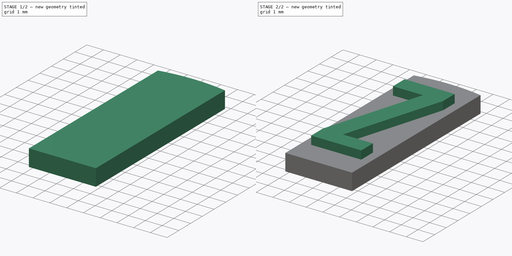
[diagram: build sequence overview — one tinted view per stage of 2, left to right]
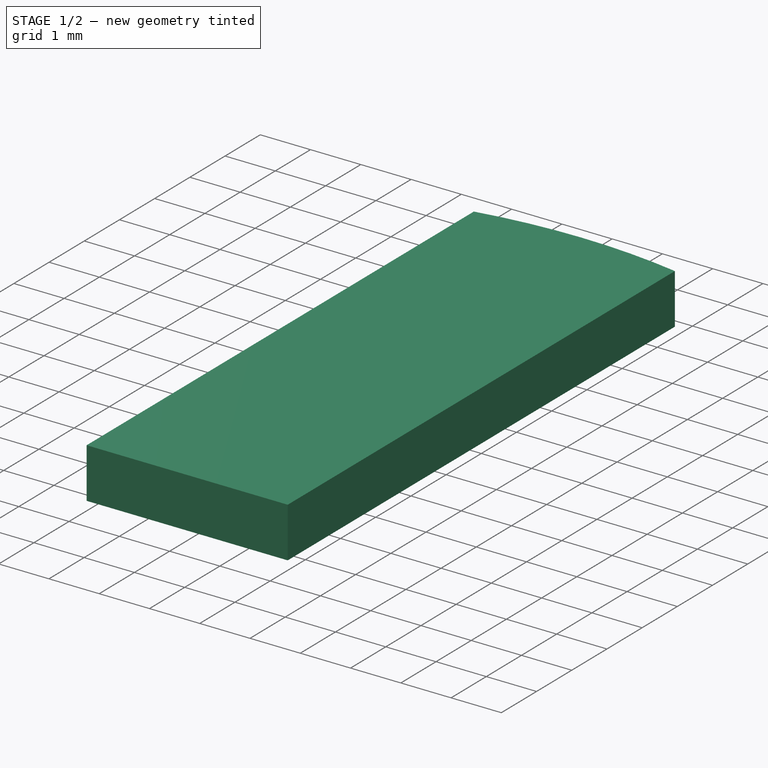
[diagram: stage 1 of 2 — iso view after this stage's code; geometry added in this stage tinted green]
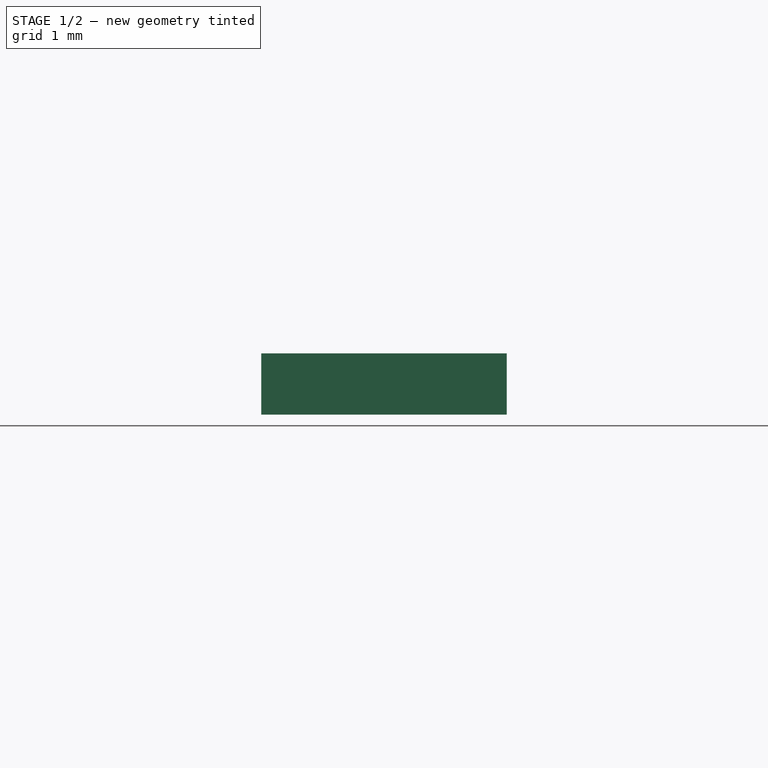
[diagram: stage 1 of 2 — front view after this stage's code; geometry added in this stage tinted green]
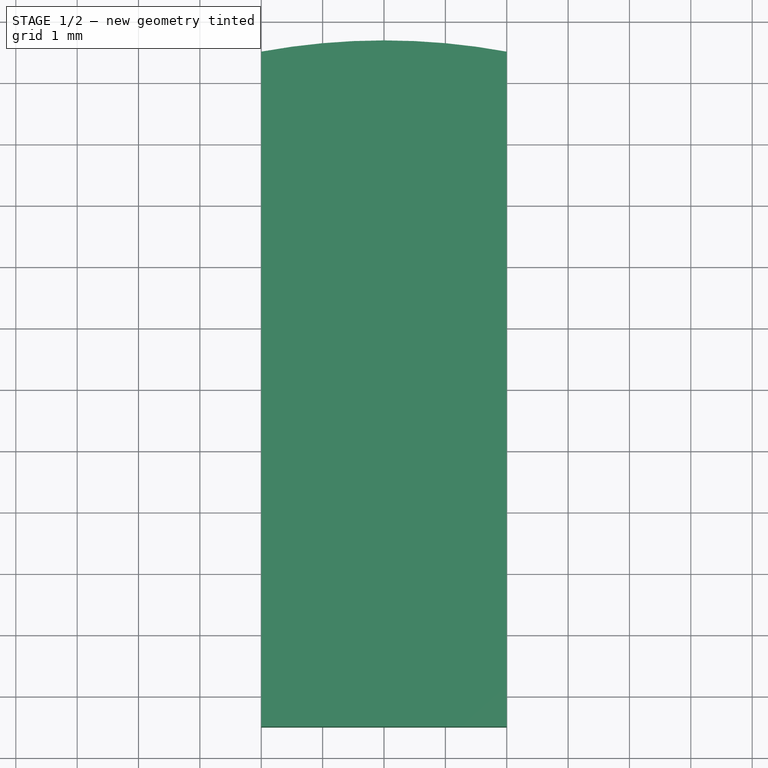
[diagram: stage 1 of 2 — top view after this stage's code; geometry added in this stage tinted green]
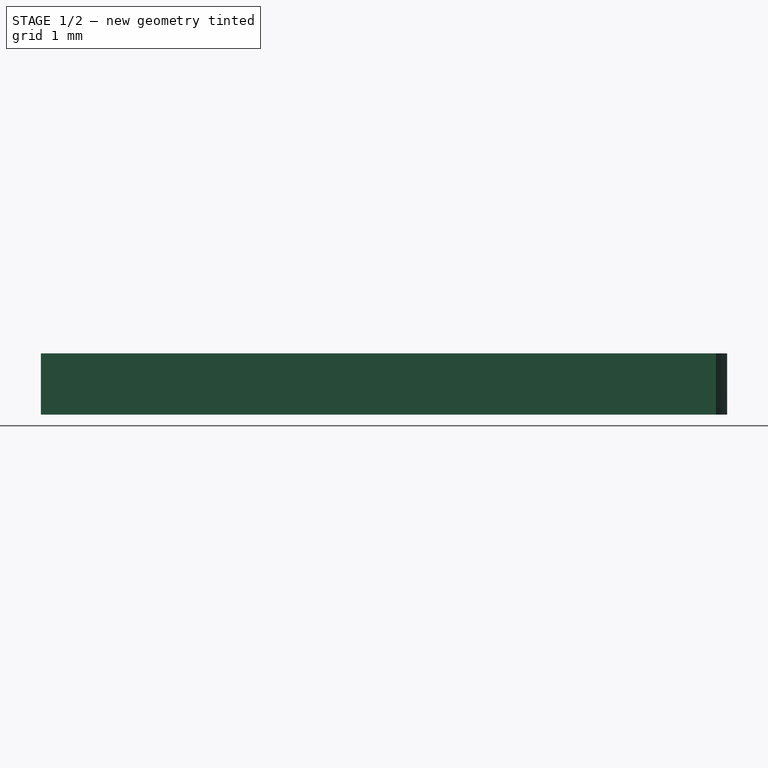
[diagram: stage 1 of 2 — right view after this stage's code; geometry added in this stage tinted green]
FCSTD DOCUMENT  (FreeCAD 0.16R6698 (Git))
Label: 3_2_Face_Cote_Volet
License: All rights reserved
LicenseURL: http://fr.wikipedia.org/wiki/<copyright redacted>
objects: Sketcher::SketchObject×2, PartDesign::Pad×2
note: 6 computed .brp shape members not serialized (recipe doc carries the construction recipe); baked Part::Feature solids carry a one-line shape summary decoded from their .brp

FEATURE [Sketcher::SketchObject] Sketch
  sketch-geometry (4):
    g0: LineSegment StartX=2 StartY=5.5 StartZ=0 EndX=2 EndY=-5.5 EndZ=0
    g1: LineSegment StartX=2 StartY=-5.5 StartZ=0 EndX=-2 EndY=-5.5 EndZ=0
    g2: LineSegment StartX=-2 StartY=-5.5 StartZ=0 EndX=-2 EndY=5.5 EndZ=0
    g3: ArcOfCircle CenterX=0 CenterY=-5.31665 CenterZ=0 NormalX=0 NormalY=0 NormalZ=1 Radius=11 StartAngle=1.38796 EndAngle=1.75363
  constraints (13):
    c: Coincident(g0,g1)
    c: Coincident(g1,g2)
    c: Horizontal(g1)
    c: Vertical(g0)
    c: Vertical(g2)
    c: DistanceY(g1,g2) = 11
    c: Symmetric(g1,g0,g-2)
    c: Symmetric(g1,g2,g-1)
    c: DistanceX(g1,g0) = 4
    c: PointOnObject(g3,g-2)
    c: Coincident(g3,g2)
    c: Coincident(g3,g0)
    c: Radius(g3) = 11
FEATURE [PartDesign::Pad] Pad
  Length = 1
  Length2 = 100
  Sketch = -> Sketch
  Type = 0
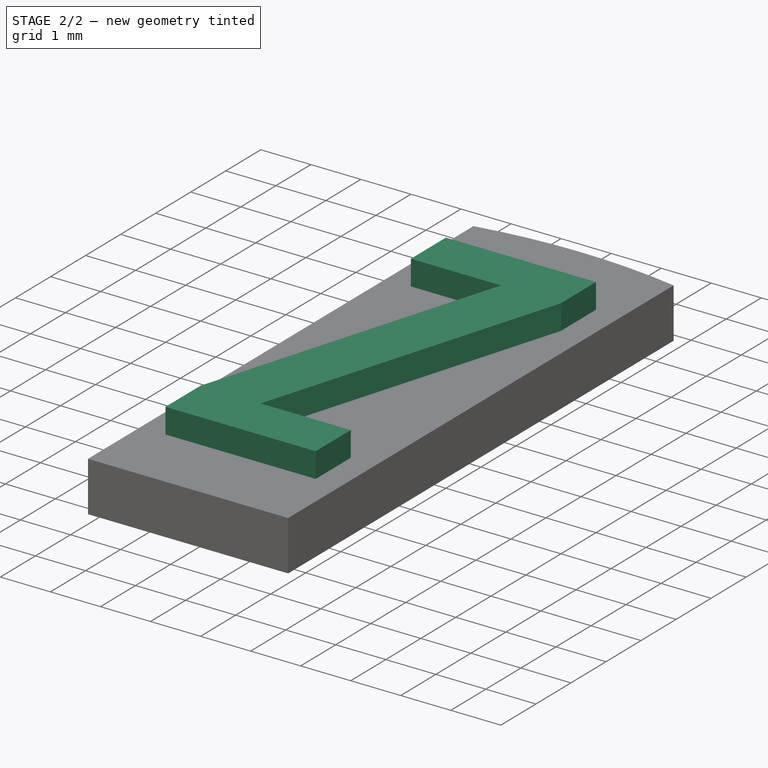
[diagram: stage 2 of 2 — iso view after this stage's code; geometry added in this stage tinted green]
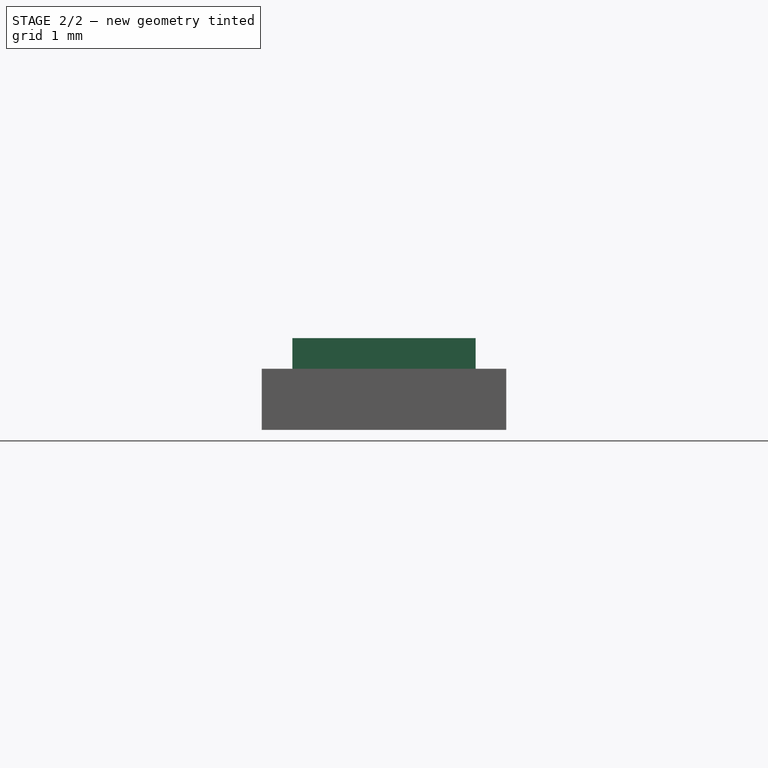
[diagram: stage 2 of 2 — front view after this stage's code; geometry added in this stage tinted green]
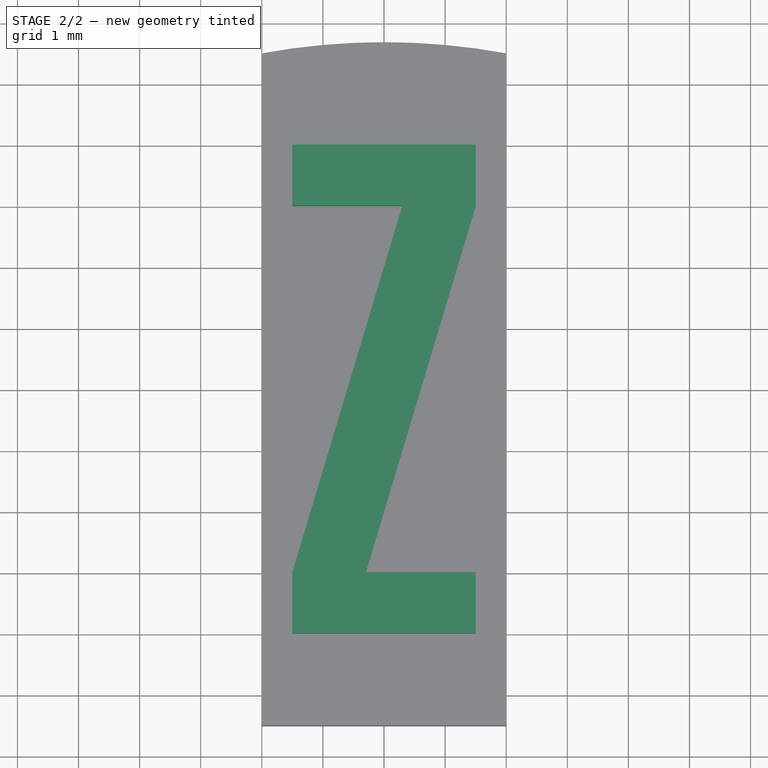
[diagram: stage 2 of 2 — top view after this stage's code; geometry added in this stage tinted green]
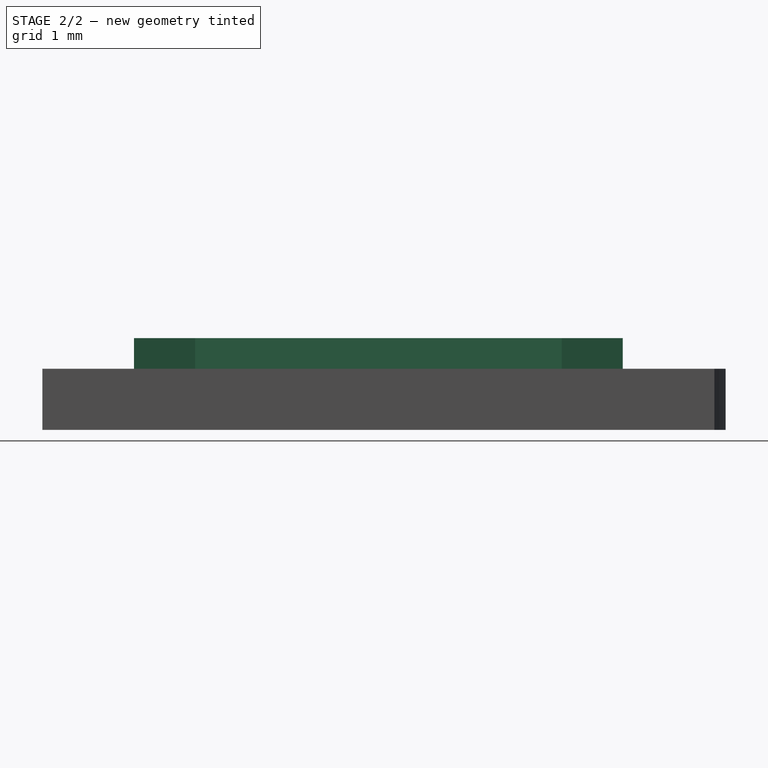
[diagram: stage 2 of 2 — right view after this stage's code; geometry added in this stage tinted green]
FEATURE [Sketcher::SketchObject] Sketch001
  Placement = pos=(0,0,1) rot=(0,0,1;0rad)
  Support = -> Pad [Face6]
  sketch-geometry (10):
    g0: LineSegment StartX=-1.5 StartY=4 StartZ=0 EndX=1.5 EndY=4 EndZ=0
    g1: LineSegment StartX=1.5 StartY=4 StartZ=0 EndX=1.5 EndY=3 EndZ=0
    g2: LineSegment StartX=-1.5 StartY=3 StartZ=0 EndX=-1.5 EndY=4 EndZ=0
    g3: LineSegment StartX=1.5 StartY=-3 StartZ=0 EndX=1.5 EndY=-4 EndZ=0
    g4: LineSegment StartX=1.5 StartY=-4 StartZ=0 EndX=-1.5 EndY=-4 EndZ=0
    g5: LineSegment StartX=-1.5 StartY=-4 StartZ=0 EndX=-1.5 EndY=-3 EndZ=0
    g6: LineSegment StartX=-1.5 StartY=3 StartZ=0 EndX=0.3 EndY=3 EndZ=0
    g7: LineSegment StartX=1.5 StartY=-3 StartZ=0 EndX=-0.3 EndY=-3 EndZ=0
    g8: LineSegment StartX=-1.5 StartY=-3 StartZ=0 EndX=0.3 EndY=3 EndZ=0
    g9: LineSegment StartX=-0.3 StartY=-3 StartZ=0 EndX=1.5 EndY=3 EndZ=0
  constraints (29):
    c: Coincident(g0,g1)
    c: Coincident(g2,g0)
    c: Horizontal(g0)
    c: Vertical(g1)
    c: Vertical(g2)
    c: Coincident(g3,g4)
    c: Coincident(g4,g5)
    c: Horizontal(g4)
    c: Vertical(g3)
    c: Vertical(g5)
    c: Coincident(g6,g2)
    c: Horizontal(g6)
    c: Coincident(g7,g3)
    c: Horizontal(g7)
    c: Coincident(g8,g5)
    c: Coincident(g8,g6)
    c: Coincident(g9,g7)
    c: Coincident(g9,g1)
    c: Equal(g1,g2)
    c: Equal(g2,g5)
    c: Equal(g5,g3)
    c: Equal(g7,g6)
    c: Equal(g0,g4)
    c: DistanceX(g0,g0) = 3
    c: DistanceY(g2,g0) = 1
    c: DistanceX(g6,g1) = 1.2
    c: DistanceY(g-1,g2) = 3
    c: Symmetric(g2,g5,g-1)
    c: DistanceX(g-1,g2) = -1.5
FEATURE [PartDesign::Pad] Pad001
  Length = 0.5
  Length2 = 100
  Sketch = -> Sketch001
  Type = 0
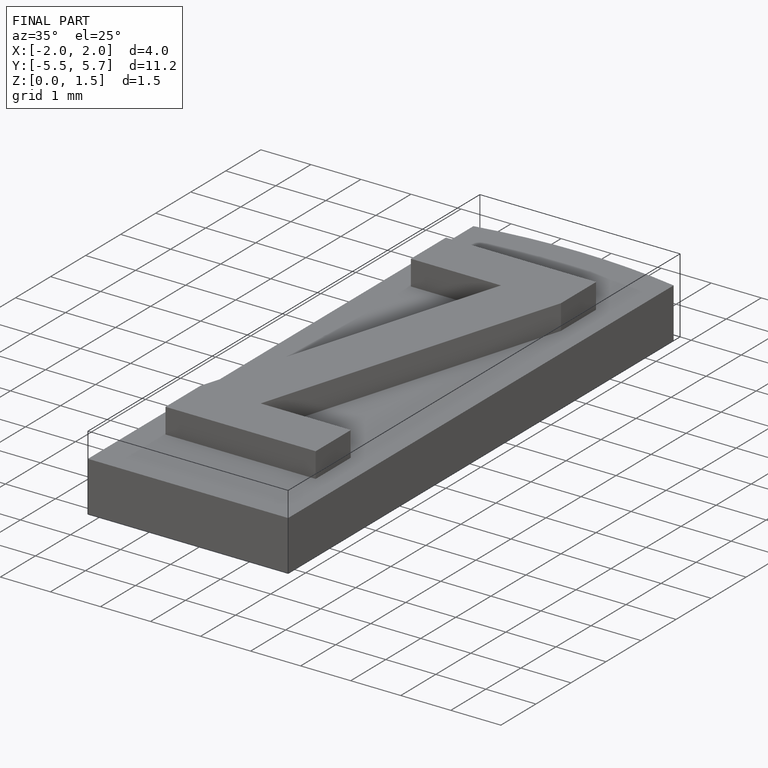
[diagram: finished part — iso view with bounding-box wireframe]
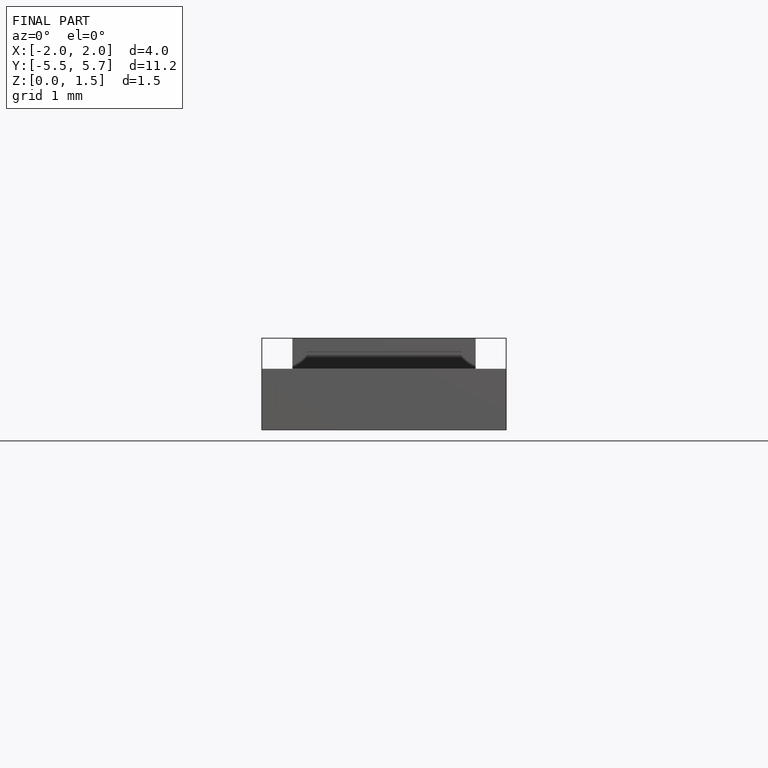
[diagram: finished part — front view with bounding-box wireframe]
